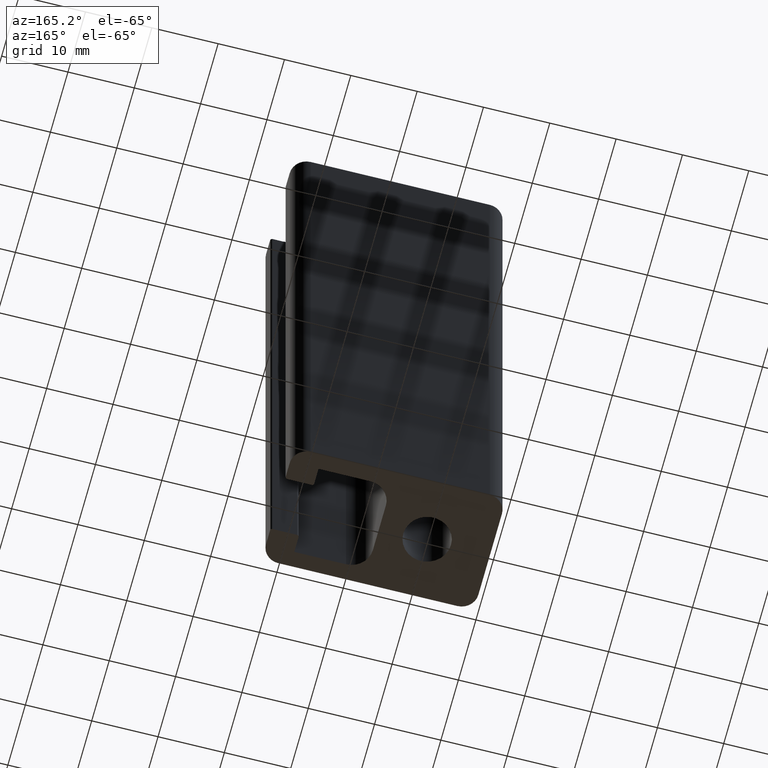
[diagram: clean part render]
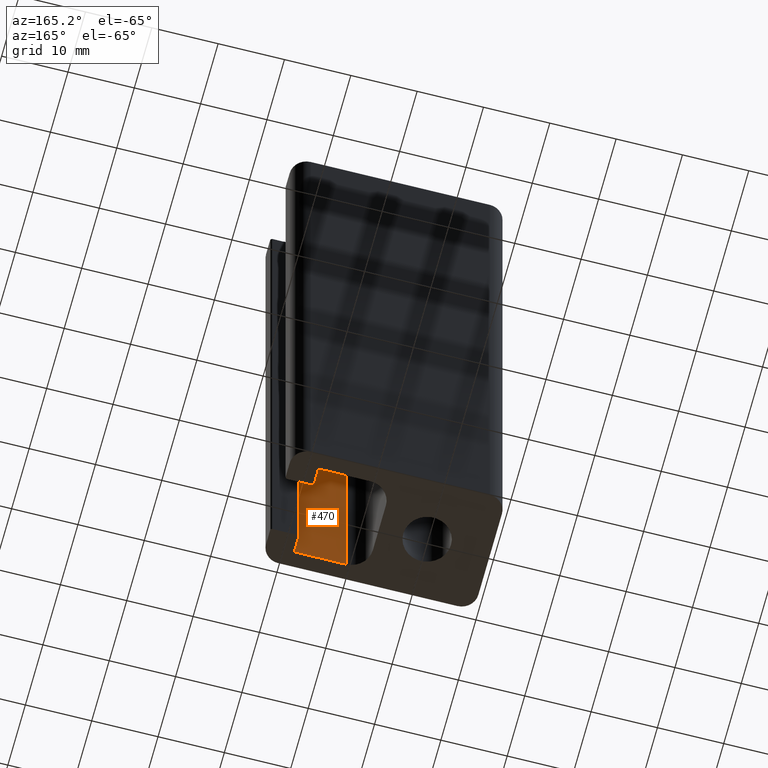
[diagram: same view with one face highlighted and labeled with its STEP entity id]
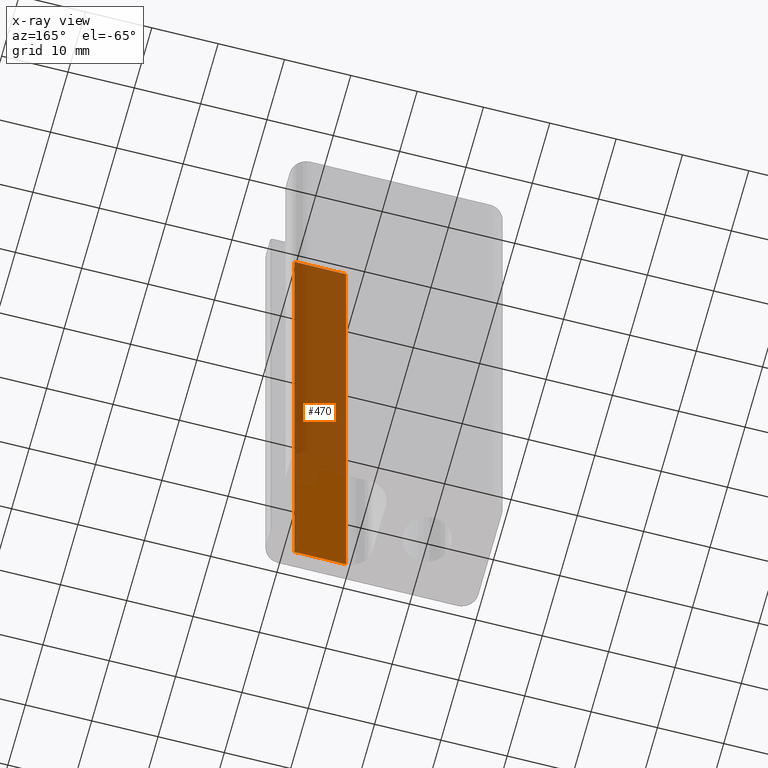
[diagram: x-ray of the same camera — body ghosted, the highlighted face saturated]
A machine part, auxiliary view. The second image highlights one B-rep face of the part: STEP entity #470.
The next image is the same camera in x-ray: the body ghosted, the highlighted face saturated — about 72% of this face is hidden behind the body in this view.
In plain terms, the highlighted planar face has unit normal (-0, -1, 0).
Its self-contained STEP definition (entity closure, byte-faithful):
#19=PLANE('',#509);
#47=LINE('',#740,#93);
#48=LINE('',#744,#94);
#49=LINE('',#746,#95);
#50=LINE('',#747,#96);
#93=VECTOR('',#596,100.);
#94=VECTOR('',#601,7.8);
#95=VECTOR('',#602,100.);
#96=VECTOR('',#603,7.8);
#134=FACE_OUTER_BOUND('',#160,.T.);
#160=EDGE_LOOP('',(#351,#352,#353,#354));
#221=VERTEX_POINT('',#737);
#222=VERTEX_POINT('',#739);
#223=VERTEX_POINT('',#743);
#224=VERTEX_POINT('',#745);
#274=EDGE_CURVE('',#222,#221,#47,.T.);
#276=EDGE_CURVE('',#223,#221,#48,.T.);
#277=EDGE_CURVE('',#224,#223,#49,.T.);
#278=EDGE_CURVE('',#222,#224,#50,.T.);
#351=ORIENTED_EDGE('',*,*,#276,.F.);
#352=ORIENTED_EDGE('',*,*,#277,.F.);
#353=ORIENTED_EDGE('',*,*,#278,.F.);
#354=ORIENTED_EDGE('',*,*,#274,.T.);
#470=ADVANCED_FACE('',(#134),#19,.F.);
#509=AXIS2_PLACEMENT_3D('',#742,#599,#600);
#596=DIRECTION('',(0.,0.,1.));
#599=DIRECTION('center_axis',(-1.63885998788898E-12,-1.,0.));
#600=DIRECTION('ref_axis',(0.,0.,-1.));
#601=DIRECTION('',(-1.,1.63885998788898E-12,0.));
#602=DIRECTION('',(0.,0.,1.));
#603=DIRECTION('',(1.,-1.63885998788898E-12,0.));
#737=CARTESIAN_POINT('',(10.4,-6.89999999998722,100.));
#739=CARTESIAN_POINT('',(10.4,-6.89999999998722,0.));
#740=CARTESIAN_POINT('',(10.4,-6.89999999998722,0.));
#742=CARTESIAN_POINT('Origin',(18.2,-6.9,0.));
#743=CARTESIAN_POINT('',(18.2,-6.9,100.));
#744=CARTESIAN_POINT('',(12.3499999999943,-6.89999999999042,100.));
#745=CARTESIAN_POINT('',(18.2,-6.9,0.));
#746=CARTESIAN_POINT('',(18.2,-6.9,0.));
#747=CARTESIAN_POINT('',(12.3499999999943,-6.89999999999042,0.));